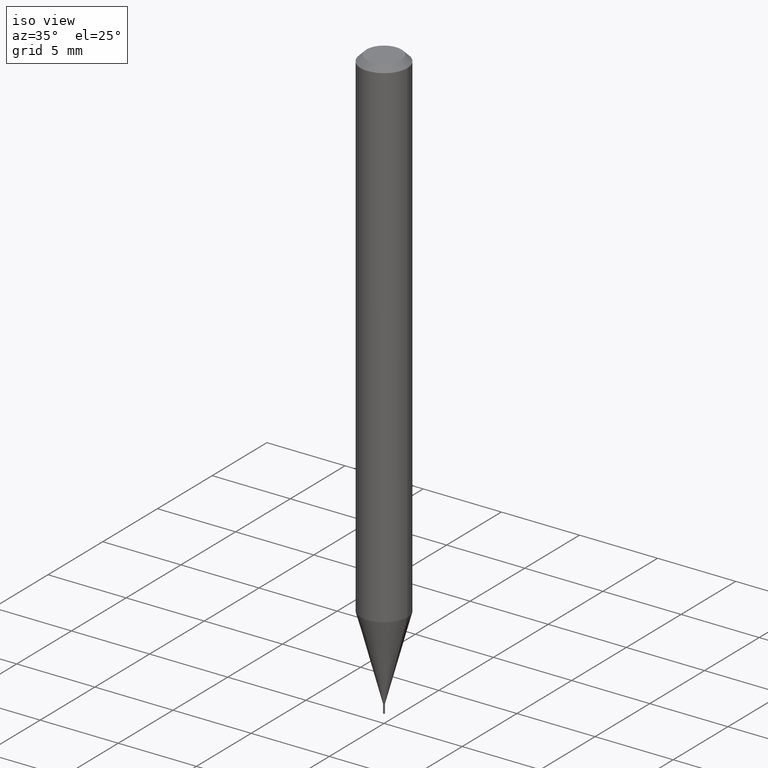
[diagram: clean part render]
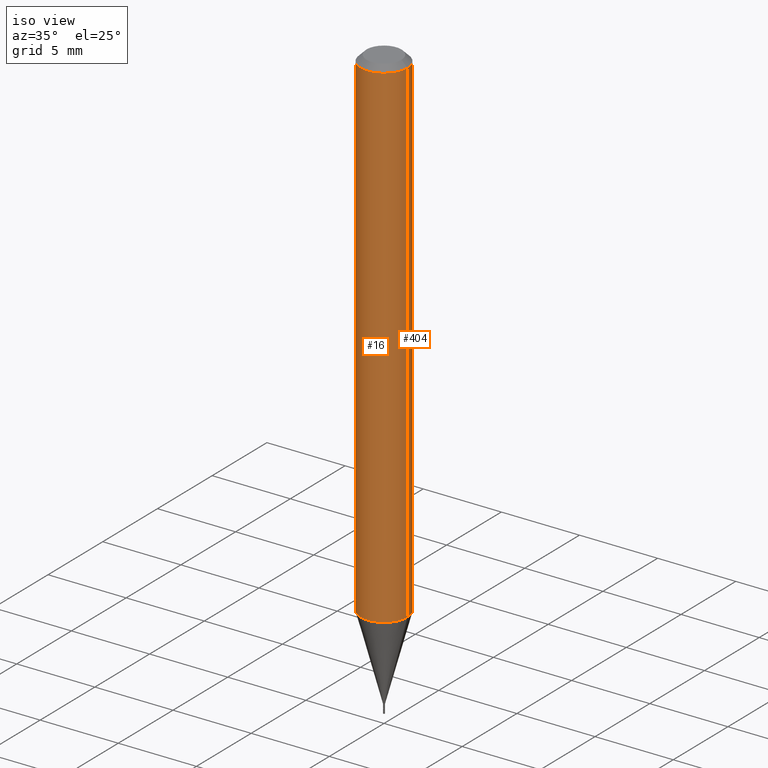
[diagram: same view with one multi-face feature highlighted, each face labeled with its STEP entity id]
A machine part, iso view. The highlighted faces form ONE feature: a constant-radius fillet chain: 2 tangent blend faces with common blend radius 1.4999 mm. The faces share edges in the B-rep.
Their STEP definitions:
[1] entity #16 (Cylinder):
#1 = CARTESIAN_POINT ( 'NONE',  ( 0.05904999999999999138, -4.829416634856539437E-15, -1.265099898887817487 ) ) ;
#4 = CARTESIAN_POINT ( 'NONE',  ( -0.05904999999999999832, 4.195754854663391478E-16, -2.904631170795521892E-30 ) ) ;
#5 = EDGE_CURVE ( 'NONE', #347, #369, #342, .T. ) ;
#9 = CYLINDRICAL_SURFACE ( 'NONE', #407, 0.05904999999999999832 ) ;
#13 = CARTESIAN_POINT ( 'NONE',  ( 3.093762339438127959E-29, -4.417072688739165306E-15, -1.265099898887817487 ) ) ;
#16 = ADVANCED_FACE ( 'NONE', ( #162 ), #9, .T. ) ;
#19 = CARTESIAN_POINT ( 'NONE',  ( 3.668203209277705088E-31, -5.237222008264718399E-17, -0.01499999999999999944 ) ) ;
#46 = DIRECTION ( 'NONE',  ( 1.000000000000000000, -6.982962677686273021E-15, 0.000000000000000000 ) ) ;
#65 = CARTESIAN_POINT ( 'NONE',  ( -0.05904999999999999138, -3.997497203272825813E-15, -1.265099898887817487 ) ) ;
#67 = EDGE_CURVE ( 'NONE', #369, #294, #246, .T. ) ;
#89 = DIRECTION ( 'NONE',  ( -2.445468806185136597E-29, 3.491481338843145583E-15, 1.000000000000000000 ) ) ;
#124 = CARTESIAN_POINT ( 'NONE',  ( 0.000000000000000000, 0.000000000000000000, 0.000000000000000000 ) ) ;
#128 = AXIS2_PLACEMENT_3D ( 'NONE', #13, #333, #46 ) ;
#133 = DIRECTION ( 'NONE',  ( -2.445468806185136597E-29, 3.491481338843145583E-15, 1.000000000000000000 ) ) ;
#150 = VECTOR ( 'NONE', #356, 39.37007874015748143 ) ;
#162 = FACE_OUTER_BOUND ( 'NONE', #321, .T. ) ;
#220 = VECTOR ( 'NONE', #414, 39.37007874015748143 ) ;
#231 = AXIS2_PLACEMENT_3D ( 'NONE', #19, #89, #338 ) ;
#233 = ORIENTED_EDGE ( 'NONE', *, *, #67, .T. ) ;
#246 = LINE ( 'NONE', #441, #220 ) ;
#256 = CARTESIAN_POINT ( 'NONE',  ( -0.05904999999999999832, -1.815146968944566897E-15, -0.01499999999999999944 ) ) ;
#272 = DIRECTION ( 'NONE',  ( 1.000000000000000000, -6.982962677686266711E-15, 4.876176775795936353E-29 ) ) ;
#277 = ORIENTED_EDGE ( 'NONE', *, *, #283, .F. ) ;
#283 = EDGE_CURVE ( 'NONE', #357, #294, #427, .T. ) ;
#294 = VERTEX_POINT ( 'NONE', #426 ) ;
#321 = EDGE_LOOP ( 'NONE', ( #458, #423, #233, #277 ) ) ;
#325 = LINE ( 'NONE', #4, #150 ) ;
#333 = DIRECTION ( 'NONE',  ( -2.445468806185136597E-29, 3.491481338843145583E-15, 1.000000000000000000 ) ) ;
#338 = DIRECTION ( 'NONE',  ( 1.000000000000000000, -6.982962677686266711E-15, 0.000000000000000000 ) ) ;
#342 = CIRCLE ( 'NONE', #128, 0.05904999999999999832 ) ;
#347 = VERTEX_POINT ( 'NONE', #65 ) ;
#356 = DIRECTION ( 'NONE',  ( -2.445468806185136877E-29, 3.491481338843145188E-15, 1.000000000000000000 ) ) ;
#357 = VERTEX_POINT ( 'NONE', #256 ) ;
#366 = EDGE_CURVE ( 'NONE', #347, #357, #325, .T. ) ;
#369 = VERTEX_POINT ( 'NONE', #1 ) ;
#407 = AXIS2_PLACEMENT_3D ( 'NONE', #124, #133, #272 ) ;
#414 = DIRECTION ( 'NONE',  ( -2.445468806185136877E-29, 3.491481338843145188E-15, 1.000000000000000000 ) ) ;
#423 = ORIENTED_EDGE ( 'NONE', *, *, #5, .T. ) ;
#426 = CARTESIAN_POINT ( 'NONE',  ( 0.05904999999999999832, -4.647161662000212105E-16, -0.01499999999999999944 ) ) ;
#427 = CIRCLE ( 'NONE', #231, 0.05904999999999999832 ) ;
#441 = CARTESIAN_POINT ( 'NONE',  ( 0.05904999999999999832, -4.123439461173740327E-16, 2.879382386107500220E-30 ) ) ;
#458 = ORIENTED_EDGE ( 'NONE', *, *, #366, .F. ) ;
[2] entity #404 (Cylinder):
#1 = CARTESIAN_POINT ( 'NONE',  ( 0.05904999999999999138, -4.829416634856539437E-15, -1.265099898887817487 ) ) ;
#4 = CARTESIAN_POINT ( 'NONE',  ( -0.05904999999999999832, 4.195754854663391478E-16, -2.904631170795521892E-30 ) ) ;
#65 = CARTESIAN_POINT ( 'NONE',  ( -0.05904999999999999138, -3.997497203272825813E-15, -1.265099898887817487 ) ) ;
#67 = EDGE_CURVE ( 'NONE', #369, #294, #246, .T. ) ;
#78 = CARTESIAN_POINT ( 'NONE',  ( 0.000000000000000000, 0.000000000000000000, 0.000000000000000000 ) ) ;
#80 = DIRECTION ( 'NONE',  ( -2.445468806185136597E-29, 3.491481338843145583E-15, 1.000000000000000000 ) ) ;
#84 = EDGE_CURVE ( 'NONE', #369, #347, #190, .T. ) ;
#104 = AXIS2_PLACEMENT_3D ( 'NONE', #144, #381, #411 ) ;
#144 = CARTESIAN_POINT ( 'NONE',  ( 3.668203209277705088E-31, -5.237222008264718399E-17, -0.01499999999999999944 ) ) ;
#150 = VECTOR ( 'NONE', #356, 39.37007874015748143 ) ;
#181 = ORIENTED_EDGE ( 'NONE', *, *, #67, .F. ) ;
#187 = AXIS2_PLACEMENT_3D ( 'NONE', #78, #288, #429 ) ;
#190 = CIRCLE ( 'NONE', #252, 0.05904999999999999832 ) ;
#205 = ORIENTED_EDGE ( 'NONE', *, *, #440, .F. ) ;
#217 = ORIENTED_EDGE ( 'NONE', *, *, #84, .T. ) ;
#220 = VECTOR ( 'NONE', #414, 39.37007874015748143 ) ;
#238 = DIRECTION ( 'NONE',  ( 1.000000000000000000, -6.982962677686273021E-15, 0.000000000000000000 ) ) ;
#246 = LINE ( 'NONE', #441, #220 ) ;
#252 = AXIS2_PLACEMENT_3D ( 'NONE', #264, #80, #238 ) ;
#256 = CARTESIAN_POINT ( 'NONE',  ( -0.05904999999999999832, -1.815146968944566897E-15, -0.01499999999999999944 ) ) ;
#264 = CARTESIAN_POINT ( 'NONE',  ( 3.093762339438127959E-29, -4.417072688739165306E-15, -1.265099898887817487 ) ) ;
#288 = DIRECTION ( 'NONE',  ( -2.445468806185136597E-29, 3.491481338843145583E-15, 1.000000000000000000 ) ) ;
#294 = VERTEX_POINT ( 'NONE', #426 ) ;
#313 = EDGE_LOOP ( 'NONE', ( #217, #385, #205, #181 ) ) ;
#325 = LINE ( 'NONE', #4, #150 ) ;
#347 = VERTEX_POINT ( 'NONE', #65 ) ;
#354 = CYLINDRICAL_SURFACE ( 'NONE', #187, 0.05904999999999999832 ) ;
#356 = DIRECTION ( 'NONE',  ( -2.445468806185136877E-29, 3.491481338843145188E-15, 1.000000000000000000 ) ) ;
#357 = VERTEX_POINT ( 'NONE', #256 ) ;
#362 = CIRCLE ( 'NONE', #104, 0.05904999999999999832 ) ;
#366 = EDGE_CURVE ( 'NONE', #347, #357, #325, .T. ) ;
#369 = VERTEX_POINT ( 'NONE', #1 ) ;
#381 = DIRECTION ( 'NONE',  ( -2.445468806185136597E-29, 3.491481338843145583E-15, 1.000000000000000000 ) ) ;
#385 = ORIENTED_EDGE ( 'NONE', *, *, #366, .T. ) ;
#395 = FACE_OUTER_BOUND ( 'NONE', #313, .T. ) ;
#404 = ADVANCED_FACE ( 'NONE', ( #395 ), #354, .T. ) ;
#411 = DIRECTION ( 'NONE',  ( 1.000000000000000000, -6.982962677686266711E-15, 0.000000000000000000 ) ) ;
#414 = DIRECTION ( 'NONE',  ( -2.445468806185136877E-29, 3.491481338843145188E-15, 1.000000000000000000 ) ) ;
#426 = CARTESIAN_POINT ( 'NONE',  ( 0.05904999999999999832, -4.647161662000212105E-16, -0.01499999999999999944 ) ) ;
#429 = DIRECTION ( 'NONE',  ( 1.000000000000000000, -6.982962677686266711E-15, 4.876176775795936353E-29 ) ) ;
#440 = EDGE_CURVE ( 'NONE', #294, #357, #362, .T. ) ;
#441 = CARTESIAN_POINT ( 'NONE',  ( 0.05904999999999999832, -4.123439461173740327E-16, 2.879382386107500220E-30 ) ) ;